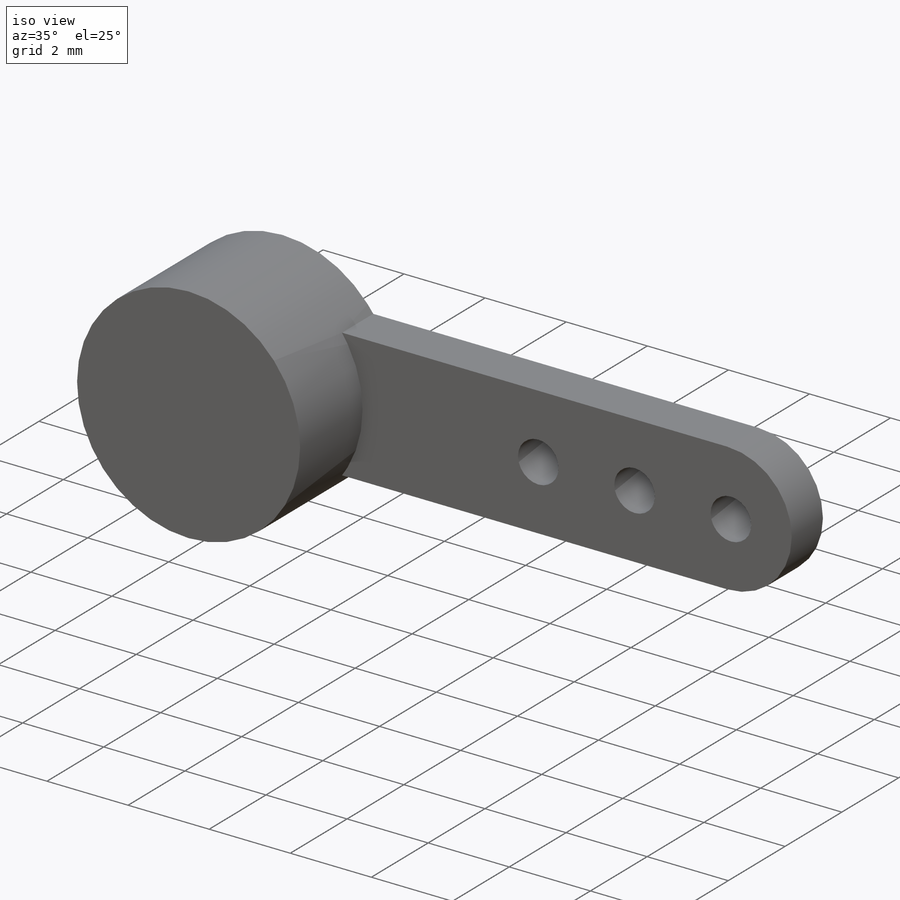
[diagram: iso view]
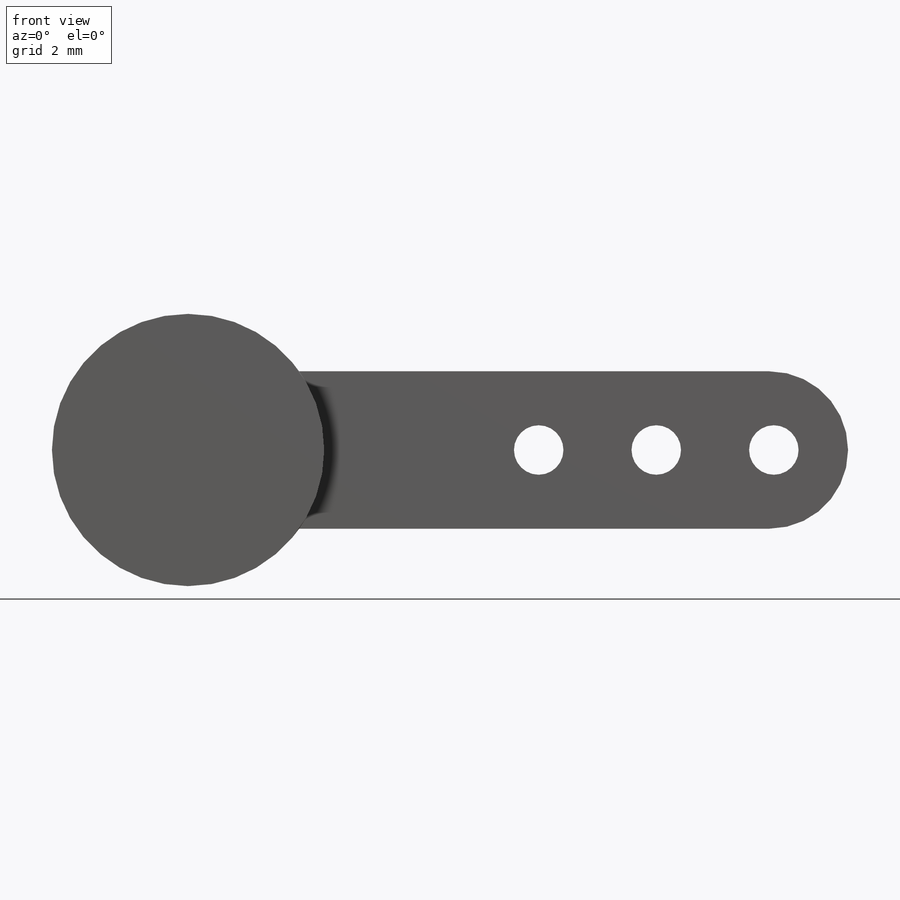
[diagram: front view]
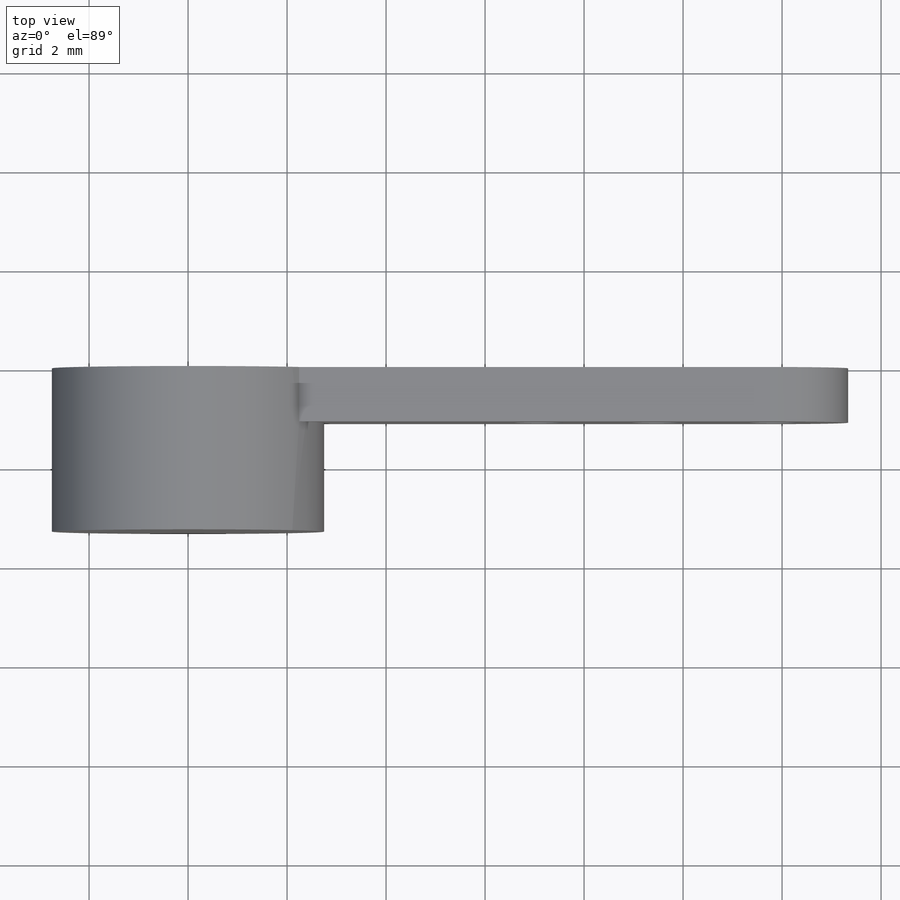
[diagram: top view]
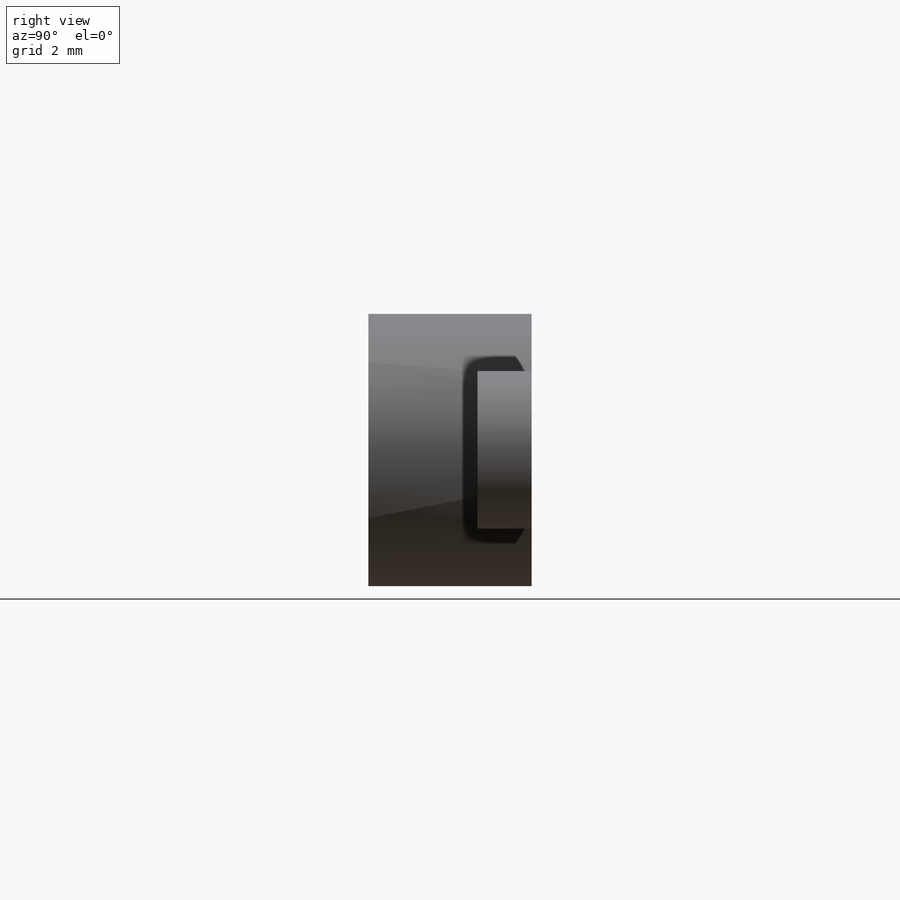
[diagram: right view]
SOLIDWORKS PART (.sldprt)
format: sldprt  version: not decoded by parser v0  size: 171,008 bytes
history: native  units: mm
features: plane x3, sketch x3, extrude x2, material x1, cut_extrude x1 (+9 scaffold rows collapsed)
feature tree (19):
  scaffold x9  (default folders/planes/origin — collapsed)
  material  "Material <not specified>"
  plane  "Plan de face"
  plane  "Plan de dessus"
  plane  "Plan de droite"
  sketch  "Sketch1"  dims[D1=5.5mm D2=9.5mm D3=3.18mm D4=1.59mm]
  extrude  "Boss-Extrude1"  Depth=1.1mm
  sketch  "Sketch2"  dims[D1=5.5mm]
  extrude  "Boss-Extrude2"  Depth=2.2mm
  sketch  "Sketch3"  dims[c1.D1=1.0mm c1.D2=1.0mm c1.D3=1.0mm c1.D6=1.0mm c1.D7=1.0mm c1.D8=1.0mm c1.D9=1.0mm c1.D4=4.75mm c1.D5=2.375mm c2.D6=1.5mm c2.D7=1.59mm c2.D8=1.59mm c2.D9=1.59mm]
  cut_extrude  "Cut-Extrude1"  [1 undecoded]
decode coverage: 5 of 6 modeling features carry decoded parameters
note: 1 parameter value undecoded
note: suppression state not decoded; provenance and decode notes live in map.json
